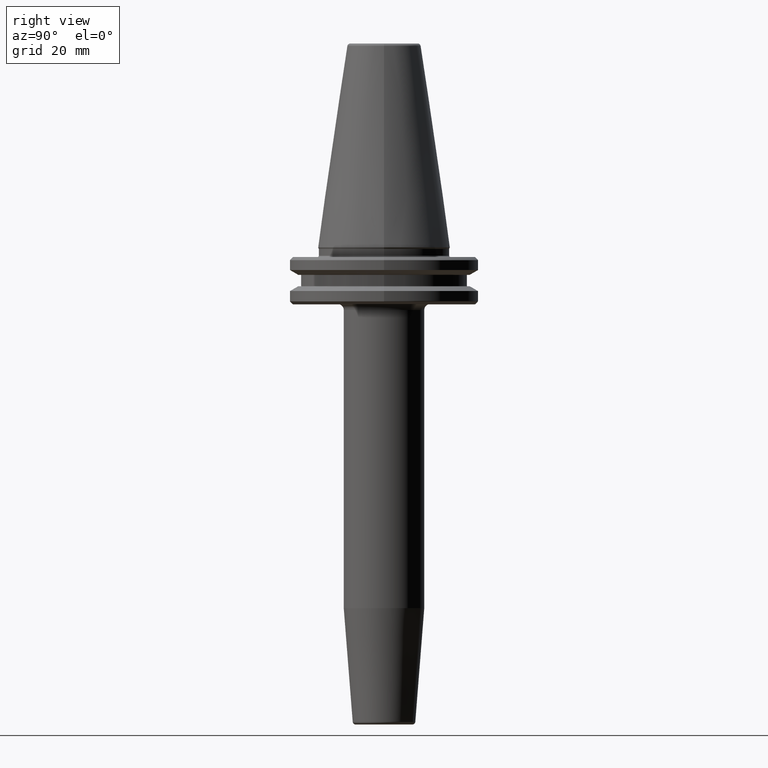
[diagram: clean part render]
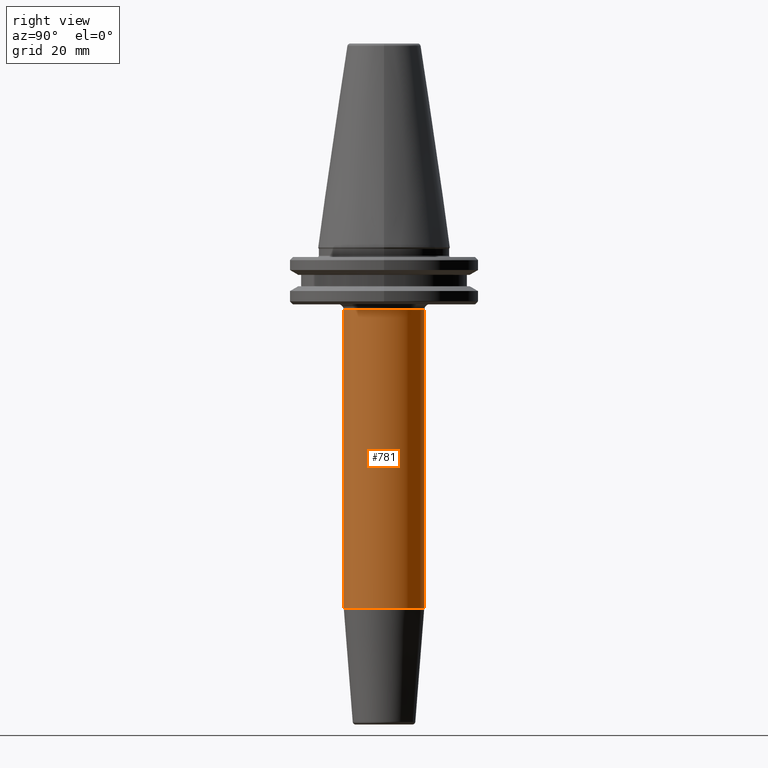
[diagram: same view with one face highlighted and labeled with its STEP entity id]
A machine part, right view. The second image highlights one B-rep face of the part: STEP entity #781.
In plain terms, the highlighted cylindrical surface (partial cylindrical patch) has radius 13.5 mm, axis along (-0, 0, -1).
Its self-contained STEP definition (entity closure, byte-faithful):
#26 = CARTESIAN_POINT ( 'NONE',  ( 0.0000000000000000000, -1.701835490922485000E-014, -20.98284271247460700 ) ) ;
#32 = CARTESIAN_POINT ( 'NONE',  ( 1.653273178848929800E-015, -13.50000000000003400, -20.98284271247460700 ) ) ;
#73 = EDGE_CURVE ( 'NONE', #1103, #921, #427, .T. ) ;
#102 = EDGE_CURVE ( 'NONE', #921, #964, #1152, .T. ) ;
#133 = CARTESIAN_POINT ( 'NONE',  ( 0.0000000000000000000, -13.50000000000001100, -120.9598448871996500 ) ) ;
#192 = CARTESIAN_POINT ( 'NONE',  ( 0.0000000000000000000, 4.467959865220142400E-016, -160.0000000000000000 ) ) ;
#206 = ORIENTED_EDGE ( 'NONE', *, *, #73, .T. ) ;
#216 = DIRECTION ( 'NONE',  ( 0.0000000000000000000, 1.000000000000000000, 0.0000000000000000000 ) ) ;
#225 = ORIENTED_EDGE ( 'NONE', *, *, #102, .T. ) ;
#250 = EDGE_CURVE ( 'NONE', #1239, #964, #662, .T. ) ;
#276 = DIRECTION ( 'NONE',  ( -0.0000000000000000000, 1.256330602389183300E-016, -1.000000000000000000 ) ) ;
#284 = EDGE_CURVE ( 'NONE', #1103, #1239, #730, .T. ) ;
#324 = DIRECTION ( 'NONE',  ( -0.0000000000000000000, 1.256330602389183300E-016, -1.000000000000000000 ) ) ;
#336 = DIRECTION ( 'NONE',  ( 0.0000000000000000000, 1.000000000000000000, 0.0000000000000000000 ) ) ;
#343 = AXIS2_PLACEMENT_3D ( 'NONE', #886, #324, #216 ) ;
#413 = AXIS2_PLACEMENT_3D ( 'NONE', #26, #447, #336 ) ;
#416 = DIRECTION ( 'NONE',  ( -0.0000000000000000000, 1.256330602389183300E-016, -1.000000000000000000 ) ) ;
#427 = CIRCLE ( 'NONE', #413, 13.50000000000001800 ) ;
#447 = DIRECTION ( 'NONE',  ( -0.0000000000000000000, 1.256330602389183300E-016, -1.000000000000000000 ) ) ;
#568 = CARTESIAN_POINT ( 'NONE',  ( 1.653273178848928400E-015, -13.50000000000001200, -160.0000000000000000 ) ) ;
#579 = VECTOR ( 'NONE', #276, 1000.000000000000000 ) ;
#599 = EDGE_LOOP ( 'NONE', ( #206, #225, #672, #1093 ) ) ;
#662 = CIRCLE ( 'NONE', #343, 13.50000000000000500 ) ;
#672 = ORIENTED_EDGE ( 'NONE', *, *, #250, .F. ) ;
#730 = LINE ( 'NONE', #775, #893 ) ;
#735 = CARTESIAN_POINT ( 'NONE',  ( 1.653273178848927500E-015, 13.50000000000000000, -120.9598448871996500 ) ) ;
#769 = DIRECTION ( 'NONE',  ( 0.0000000000000000000, 1.000000000000000000, 0.0000000000000000000 ) ) ;
#775 = CARTESIAN_POINT ( 'NONE',  ( 0.0000000000000000000, 13.50000000000001200, -160.0000000000000000 ) ) ;
#781 = ADVANCED_FACE ( 'NONE', ( #842 ), #1040, .T. ) ;
#829 = CARTESIAN_POINT ( 'NONE',  ( 0.0000000000000000000, 13.50000000000000000, -20.98284271247460700 ) ) ;
#842 = FACE_OUTER_BOUND ( 'NONE', #599, .T. ) ;
#859 = DIRECTION ( 'NONE',  ( -0.0000000000000000000, 1.256330602389183300E-016, -1.000000000000000000 ) ) ;
#886 = CARTESIAN_POINT ( 'NONE',  ( 0.0000000000000000000, -4.457938172501148500E-015, -120.9598448871996500 ) ) ;
#893 = VECTOR ( 'NONE', #416, 1000.000000000000000 ) ;
#921 = VERTEX_POINT ( 'NONE', #32 ) ;
#964 = VERTEX_POINT ( 'NONE', #133 ) ;
#1040 = CYLINDRICAL_SURFACE ( 'NONE', #1076, 13.50000000000001200 ) ;
#1076 = AXIS2_PLACEMENT_3D ( 'NONE', #192, #859, #769 ) ;
#1093 = ORIENTED_EDGE ( 'NONE', *, *, #284, .F. ) ;
#1103 = VERTEX_POINT ( 'NONE', #829 ) ;
#1152 = LINE ( 'NONE', #568, #579 ) ;
#1239 = VERTEX_POINT ( 'NONE', #735 ) ;